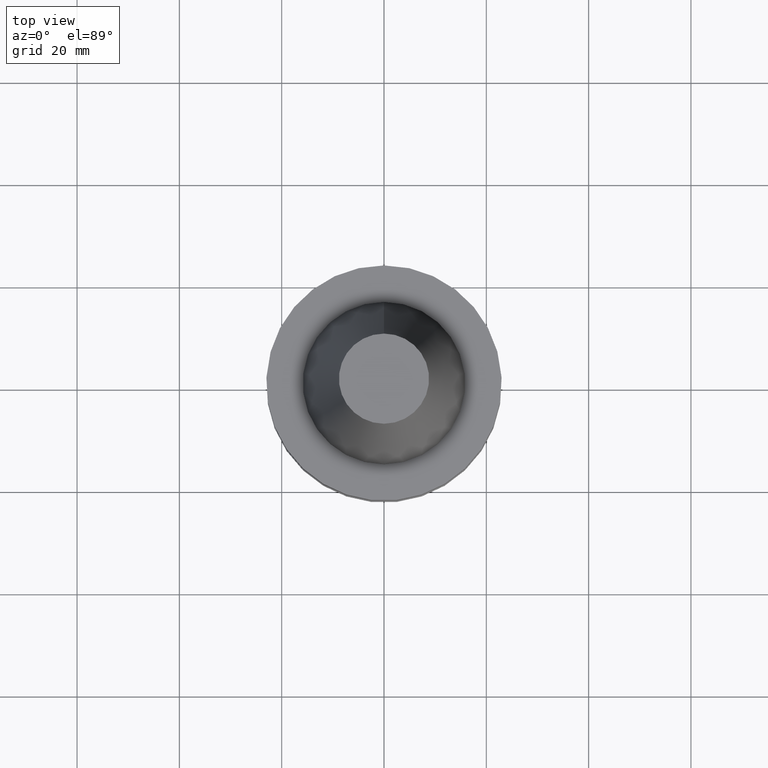
[diagram: clean part render]
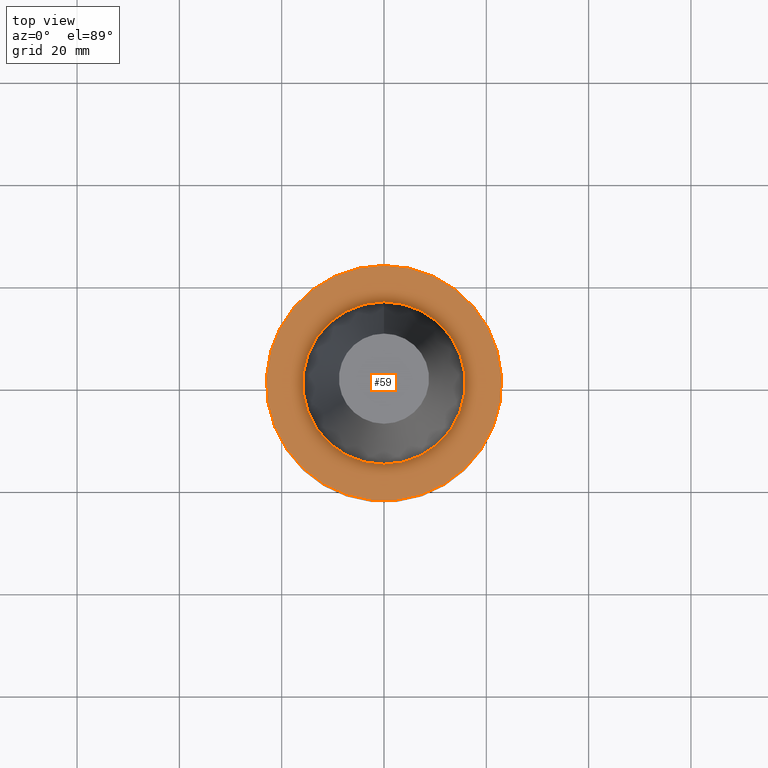
[diagram: same view with one face highlighted and labeled with its STEP entity id]
A machine part, top view. The second image highlights one B-rep face of the part: STEP entity #59.
In plain terms, the highlighted planar face has unit normal (-0, -0, 1).
Its self-contained STEP definition (entity closure, byte-faithful):
#59=ADVANCED_FACE('Unnamed[1]',(#146,#147),#148,.T.);
#78=EDGE_CURVE('Unnamed[1]',#175,#175,#176,.T.);
#100=EDGE_CURVE('Unnamed[1]',#210,#210,#211,.T.);
#146=FACE_OUTER_BOUND('',#258,.T.);
#147=FACE_BOUND('',#259,.T.);
#148=PLANE('',#260);
#175=VERTEX_POINT('',#294);
#176=CIRCLE('',#295,15.875);
#210=VERTEX_POINT('',#337);
#211=CIRCLE('',#338,23.0);
#258=EDGE_LOOP('',(#383));
#259=EDGE_LOOP('',(#384));
#260=AXIS2_PLACEMENT_3D('',#385,#386,#387);
#294=CARTESIAN_POINT('',(2.22044604925031E-016,15.875,-0.999999999999998));
#295=AXIS2_PLACEMENT_3D('',#413,#414,#415);
#337=CARTESIAN_POINT('',(2.22044604925031E-016,23.0,-0.999999999999997));
#338=AXIS2_PLACEMENT_3D('',#454,#455,#456);
#383=ORIENTED_EDGE('',*,*,#100,.F.);
#384=ORIENTED_EDGE('',*,*,#78,.T.);
#385=CARTESIAN_POINT('',(2.22044604925031E-016,19.4375,-0.999999999999998));
#386=DIRECTION('',(-2.22044604925031E-016,-1.22464679914735E-016,1.0));
#387=DIRECTION('',(6.16297582203915E-033,-1.0,-1.22464679914735E-016));
#413=CARTESIAN_POINT('',(2.22044604925031E-016,1.22464679914735E-016,-1.0));
#414=DIRECTION('',(2.22044604925031E-016,1.22464679914735E-016,-1.0));
#415=DIRECTION('',(-6.16297582203915E-033,1.0,1.22464679914735E-016));
#454=CARTESIAN_POINT('',(2.22044604925031E-016,1.22464679914735E-016,-1.0));
#455=DIRECTION('',(2.22044604925031E-016,1.22464679914735E-016,-1.0));
#456=DIRECTION('',(-6.16297582203915E-033,1.0,1.22464679914735E-016));